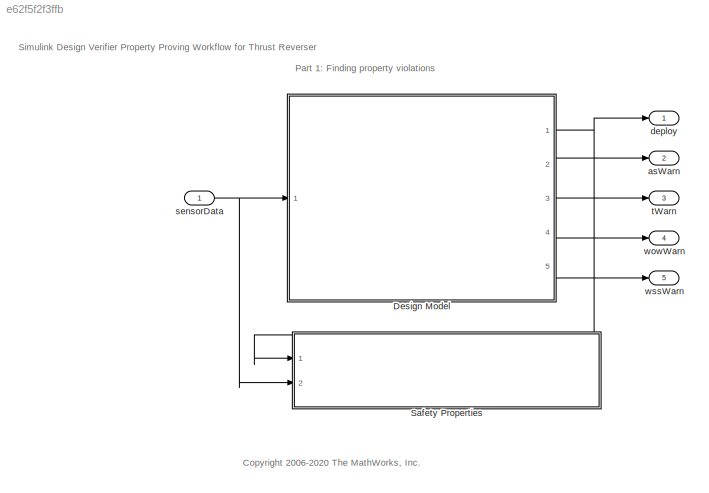
MODEL slx_e62f5f2f3ffb
KIND model
CONFIG AbsTol = auto
CONFIG EnableMultiTasking = on
CONFIG FixedStep = .1
CONFIG MaxStep = auto
CONFIG MinStep = auto
CONFIG PreLoadFcn = load sldvdemo_thrust_reverse_bus.mat
CONFIG RelTol = 1e-3
CONFIG SampleTimeConstraint = Unconstrained
CONFIG Solver = FixedStepDiscrete
CONFIG SolverName = FixedStepDiscrete
CONFIG StartTime = 0.0
CONFIG StopTime = 10.0
BLOCK [ModelReference] Design Model
  ModelNameDialog = sldvdemo_thrustrvs_int_original.slx
  ModelReferenceVersion = 1.92
  Ports = [1, 5]
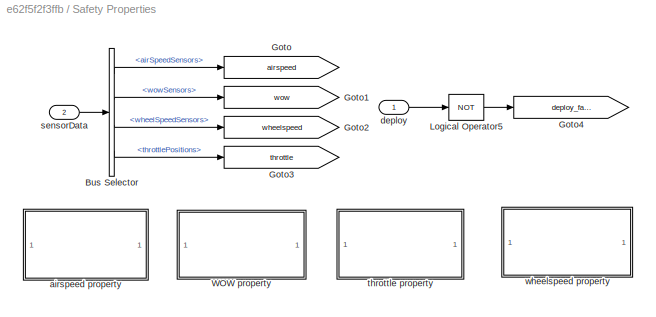
BLOCK [SubSystem] Safety Properties
  CopyFcn = sldvsubsys('copy');
  DisableCoverage = on
  LoadFcn = sldvsubsys('check')
  OpenFcn = open_system(gcb,'force');
  Ports = [2]
  PreSaveFcn = set_param(gcb,'SimViewingDevice','on');\nsldvsubsys('check');
  RequestExecContextInheritance = off
  SimViewingDevice = on
  Tag = VerificationSubsystem
  TreatAsAtomicUnit = on
BLOCK [BusSelector] Safety Properties/Bus Selector
  OutputSignals = airSpeedSensors,wowSensors,wheelSpeedSensors,throttlePositions
  Ports = [1, 4]
BLOCK [Goto] Safety Properties/Goto
  GotoTag = airspeed
  TagVisibility = global
BLOCK [Goto] Safety Properties/Goto1
  GotoTag = wow
  TagVisibility = global
BLOCK [Goto] Safety Properties/Goto2
  GotoTag = wheelspeed
  TagVisibility = global
BLOCK [Goto] Safety Properties/Goto3
  GotoTag = throttle
  TagVisibility = global
BLOCK [Goto] Safety Properties/Goto4
  GotoTag = deploy_false
  TagVisibility = global
BLOCK [Logic] Safety Properties/Logical Operator5
  AllPortsSameDT = off
  Inputs = 1
  Operator = NOT
  OutDataTypeStr = boolean
  Ports = [1, 1]
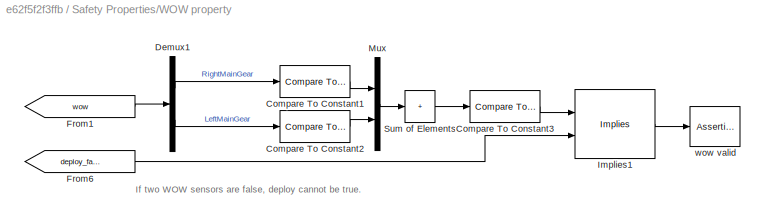
BLOCK [SubSystem] Safety Properties/WOW property
  Ports = []
  RequestExecContextInheritance = off
BLOCK [Reference] Safety Properties/WOW property/Compare To Constant1  REF=simulink/Logic and Bit
Operations/Compare
To Constant
  Ports = [1, 1]
  SourceBlock = simulink/Logic and Bit\nOperations/Compare\nTo Constant
  SourceProductBaseCode = SL
  SourceType = Compare To Constant
BLOCK [Reference] Safety Properties/WOW property/Compare To Constant2  REF=simulink/Logic and Bit
Operations/Compare
To Constant
  Ports = [1, 1]
  SourceBlock = simulink/Logic and Bit\nOperations/Compare\nTo Constant
  SourceProductBaseCode = SL
  SourceType = Compare To Constant
BLOCK [Reference] Safety Properties/WOW property/Compare To Constant3  REF=simulink/Logic and Bit
Operations/Compare
To Constant
  Ports = [1, 1]
  SourceBlock = simulink/Logic and Bit\nOperations/Compare\nTo Constant
  SourceProductBaseCode = SL
  SourceType = Compare To Constant
BLOCK [Demux] Safety Properties/WOW property/Demux1
  Outputs = [2 2]
  Ports = [1, 2]
BLOCK [From] Safety Properties/WOW property/From1
  GotoTag = wow
  TagVisibility = global
BLOCK [From] Safety Properties/WOW property/From6
  GotoTag = deploy_false
  TagVisibility = global
BLOCK [Reference] Safety Properties/WOW property/Implies1  REF=sldvlib/Verification Utilities/Implies
  Ports = [2, 1]
  SourceBlock = sldvlib/Verification Utilities/Implies
  SourceProductBaseCode = SL
  SourceType = Design Verifier Implies
BLOCK [Mux] Safety Properties/WOW property/Mux
  DisplayOption = bar
  Inputs = 2
  Ports = [2, 1]
BLOCK [Sum] Safety Properties/WOW property/Sum of Elements
  IconShape = rectangular
  Inputs = 1
  Ports = [1, 1]
BLOCK [Assertion] Safety Properties/WOW property/wow valid
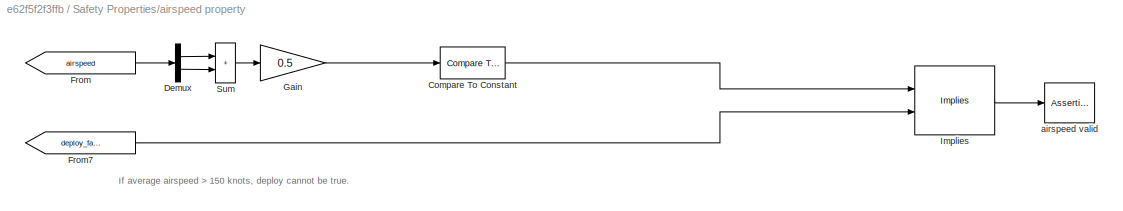
BLOCK [SubSystem] Safety Properties/airspeed property
  Ports = []
  RequestExecContextInheritance = off
BLOCK [Reference] Safety Properties/airspeed property/Compare To Constant  REF=simulink/Logic and Bit
Operations/Compare
To Constant
  Ports = [1, 1]
  SourceBlock = simulink/Logic and Bit\nOperations/Compare\nTo Constant
  SourceProductBaseCode = SL
  SourceType = Compare To Constant
BLOCK [Demux] Safety Properties/airspeed property/Demux
  Outputs = 2
  Ports = [1, 2]
BLOCK [From] Safety Properties/airspeed property/From
  GotoTag = airspeed
  TagVisibility = global
BLOCK [From] Safety Properties/airspeed property/From7
  GotoTag = deploy_false
  TagVisibility = global
BLOCK [Gain] Safety Properties/airspeed property/Gain
  Gain = 0.5
BLOCK [Reference] Safety Properties/airspeed property/Implies  REF=sldvlib/Verification Utilities/Implies
  Ports = [2, 1]
  SourceBlock = sldvlib/Verification Utilities/Implies
  SourceProductBaseCode = SL
  SourceType = Design Verifier Implies
BLOCK [Sum] Safety Properties/airspeed property/Sum
  IconShape = rectangular
  Ports = [2, 1]
BLOCK [Assertion] Safety Properties/airspeed property/airspeed valid
BLOCK [Inport] Safety Properties/deploy
BLOCK [Inport] Safety Properties/sensorData
  Port = 2
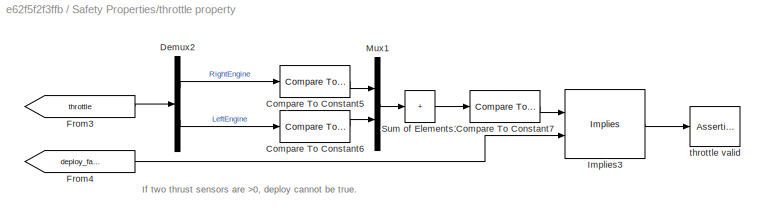
BLOCK [SubSystem] Safety Properties/throttle property
  Ports = []
  RequestExecContextInheritance = off
BLOCK [Reference] Safety Properties/throttle property/Compare To Constant5  REF=simulink/Logic and Bit
Operations/Compare
To Constant
  Ports = [1, 1]
  SourceBlock = simulink/Logic and Bit\nOperations/Compare\nTo Constant
  SourceProductBaseCode = SL
  SourceType = Compare To Constant
BLOCK [Reference] Safety Properties/throttle property/Compare To Constant6  REF=simulink/Logic and Bit
Operations/Compare
To Constant
  Ports = [1, 1]
  SourceBlock = simulink/Logic and Bit\nOperations/Compare\nTo Constant
  SourceProductBaseCode = SL
  SourceType = Compare To Constant
BLOCK [Reference] Safety Properties/throttle property/Compare To Constant7  REF=simulink/Logic and Bit
Operations/Compare
To Constant
  Ports = [1, 1]
  SourceBlock = simulink/Logic and Bit\nOperations/Compare\nTo Constant
  SourceProductBaseCode = SL
  SourceType = Compare To Constant
BLOCK [Demux] Safety Properties/throttle property/Demux2
  Outputs = [2 2]
  Ports = [1, 2]
BLOCK [From] Safety Properties/throttle property/From3
  GotoTag = throttle
  TagVisibility = global
BLOCK [From] Safety Properties/throttle property/From4
  GotoTag = deploy_false
  TagVisibility = global
BLOCK [Reference] Safety Properties/throttle property/Implies3  REF=sldvlib/Verification Utilities/Implies
  Ports = [2, 1]
  SourceBlock = sldvlib/Verification Utilities/Implies
  SourceProductBaseCode = SL
  SourceType = Design Verifier Implies
BLOCK [Mux] Safety Properties/throttle property/Mux1
  DisplayOption = bar
  Inputs = 2
  Ports = [2, 1]
BLOCK [Sum] Safety Properties/throttle property/Sum of Elements1
  IconShape = rectangular
  Inputs = 1
  Ports = [1, 1]
BLOCK [Assertion] Safety Properties/throttle property/throttle valid
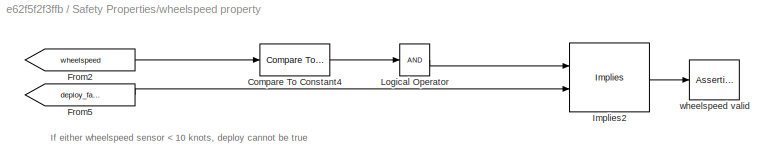
BLOCK [SubSystem] Safety Properties/wheelspeed property
  Ports = []
  RequestExecContextInheritance = off
BLOCK [Reference] Safety Properties/wheelspeed property/Compare To Constant4  REF=simulink/Logic and Bit
Operations/Compare
To Constant
  Ports = [1, 1]
  SourceBlock = simulink/Logic and Bit\nOperations/Compare\nTo Constant
  SourceProductBaseCode = SL
  SourceType = Compare To Constant
BLOCK [From] Safety Properties/wheelspeed property/From2
  GotoTag = wheelspeed
  TagVisibility = global
BLOCK [From] Safety Properties/wheelspeed property/From5
  GotoTag = deploy_false
  TagVisibility = global
BLOCK [Reference] Safety Properties/wheelspeed property/Implies2  REF=sldvlib/Verification Utilities/Implies
  Ports = [2, 1]
  SourceBlock = sldvlib/Verification Utilities/Implies
  SourceProductBaseCode = SL
  SourceType = Design Verifier Implies
BLOCK [Logic] Safety Properties/wheelspeed property/Logical Operator
  AllPortsSameDT = off
  Inputs = 1
  OutDataTypeStr = boolean
  Ports = [1, 1]
BLOCK [Assertion] Safety Properties/wheelspeed property/wheelspeed valid
BLOCK [Outport] asWarn
  OutDataTypeStr = boolean
  Port = 2
  PortDimensions = 1
  VectorParamsAs1DForOutWhenUnconnected = off
BLOCK [Outport] deploy
  OutDataTypeStr = boolean
  PortDimensions = 1
  VectorParamsAs1DForOutWhenUnconnected = off
BLOCK [Inport] sensorData
  OutDataTypeStr = Bus: sldvThrustReverseBus
  PortDimensions = 1
BLOCK [Outport] tWarn
  OutDataTypeStr = boolean
  Port = 3
  PortDimensions = 1
  VectorParamsAs1DForOutWhenUnconnected = off
BLOCK [Outport] wowWarn
  OutDataTypeStr = boolean
  Port = 4
  PortDimensions = 1
  VectorParamsAs1DForOutWhenUnconnected = off
BLOCK [Outport] wssWarn
  OutDataTypeStr = boolean
  Port = 5
  PortDimensions = 1
  VectorParamsAs1DForOutWhenUnconnected = off
ANNOTATION (root): <copyright redacted>
ANNOTATION (root): Part 1: Finding property violations
ANNOTATION (root): Simulink Design Verifier Property Proving Workflow for Thrust Reverser
ANNOTATION Safety Properties/WOW property: If two WOW sensors are false, deploy cannot be true.
ANNOTATION Safety Properties/airspeed property: If average airspeed > 150 knots, deploy cannot be true.
ANNOTATION Safety Properties/throttle property: If two thrust sensors are >0, deploy cannot be true.
ANNOTATION Safety Properties/wheelspeed property: If either wheelspeed sensor < 10 knots, deploy cannot be true
NET Design Model:1 -> Safety Properties:1, deploy:1
LINE Design Model:2 -> asWarn:1
LINE Design Model:3 -> tWarn:1
LINE Design Model:4 -> wowWarn:1
LINE Design Model:5 -> wssWarn:1
NET sensorData:1 -> Design Model:1, Safety Properties:2
note: NET lines group one-source signal fan-out (src -> all destinations, sorted); 1:1 wires keep LINE
